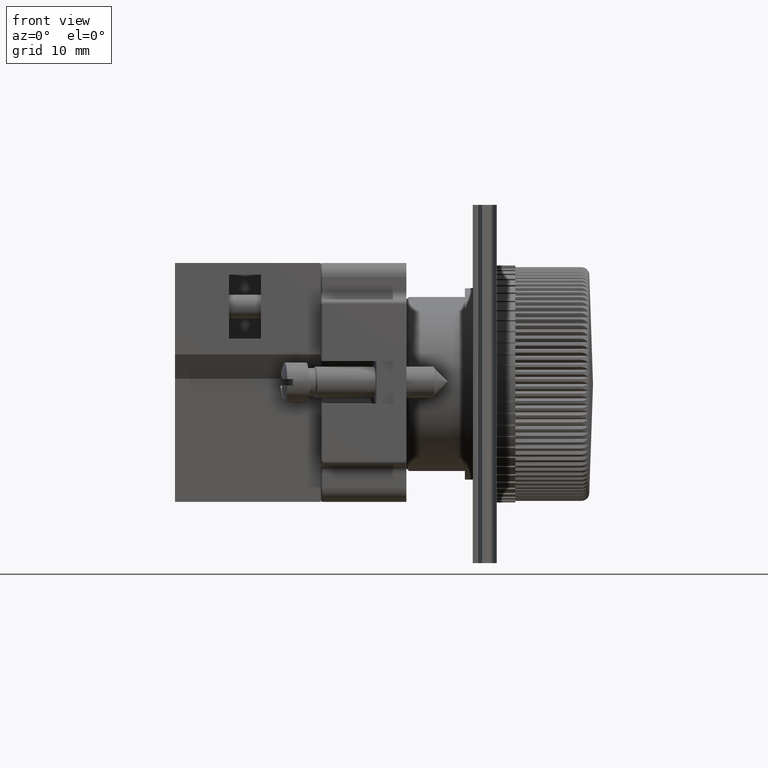
[diagram: clean part render]
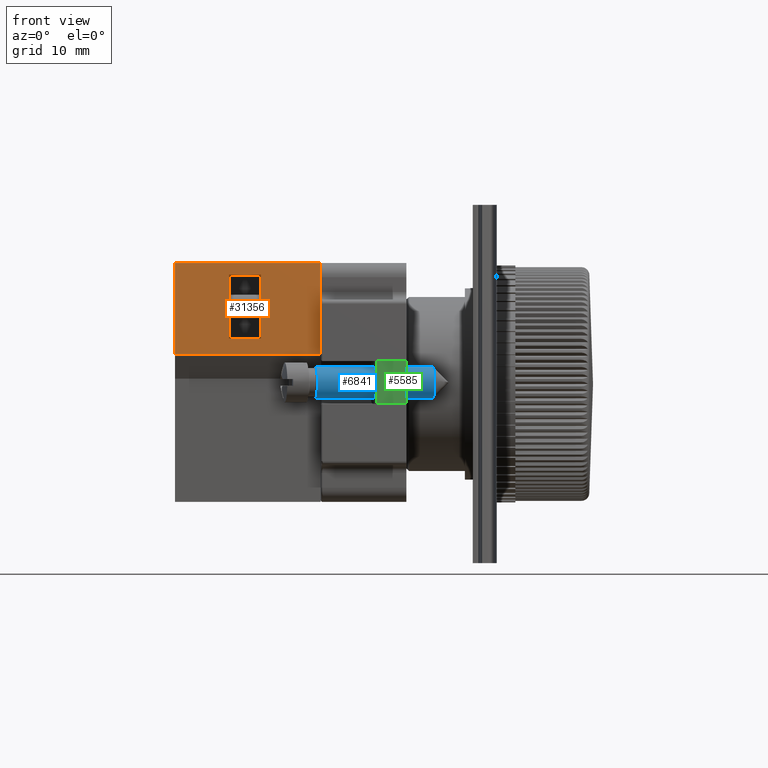
[diagram: same view with three faces highlighted in distinct colors, each labeled with its STEP entity id]
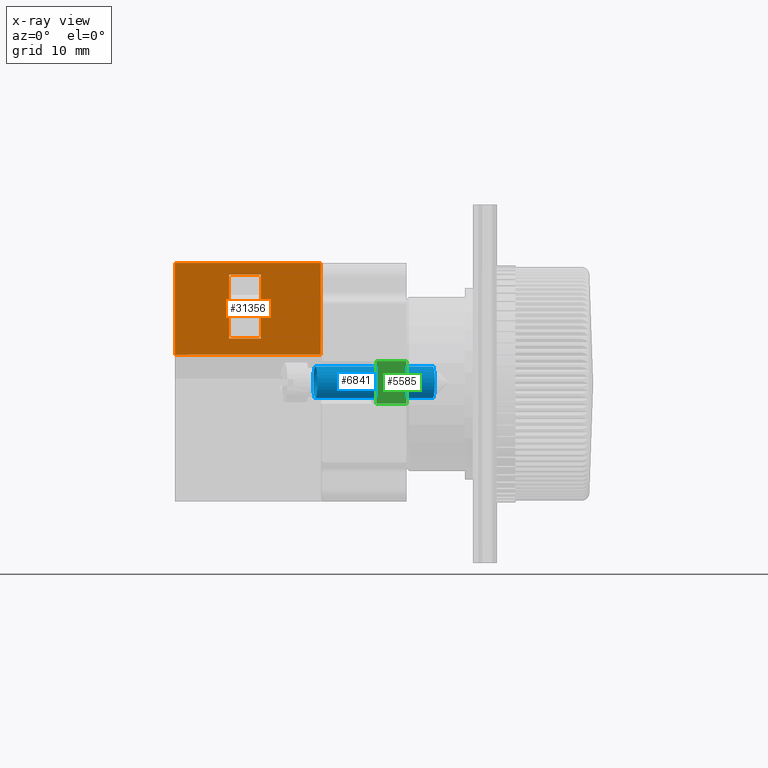
[diagram: x-ray of the same camera — body ghosted, the three highlighted faces saturated]
A machine part, front view with three faces highlighted in distinct colors.
The next image is the same camera in x-ray (body ghosted, the three faces saturated) — at least one of them is partly hidden behind the body in this view.
Their STEP definitions:

[orange] entity #31356 — the highlighted planar face has unit normal (0, -1, -0).
#30262=CARTESIAN_POINT('',(12.582876421730873,2.135901131475793,7.500000000000001));
#30263=VERTEX_POINT('',#30262);
#30270=CARTESIAN_POINT('',(12.582876421730875,10.135901131475794,7.499999999999999));
#30271=VERTEX_POINT('',#30270);
#30272=CARTESIAN_POINT('',(12.582876421730875,10.135901131475794,7.499999999999999));
#30273=DIRECTION('',(0.0,-1.0,0.0));
#30274=VECTOR('',#30273,8.0);
#30275=LINE('',#30272,#30274);
#30276=EDGE_CURVE('',#30271,#30263,#30275,.T.);
#30300=CARTESIAN_POINT('',(12.582876421730873,2.135901131475794,11.500000000000000));
#30301=VERTEX_POINT('',#30300);
#30308=CARTESIAN_POINT('',(12.582876421730873,2.135901131475793,7.500000000000001));
#30309=DIRECTION('',(0.0,0.0,1.0));
#30310=VECTOR('',#30309,3.999999999999999);
#30311=LINE('',#30308,#30310);
#30312=EDGE_CURVE('',#30263,#30301,#30311,.T.);
#30331=CARTESIAN_POINT('',(12.582876421730875,10.135901131475794,11.500000000000000));
#30332=VERTEX_POINT('',#30331);
#30339=CARTESIAN_POINT('',(12.582876421730873,2.135901131475794,11.500000000000000));
#30340=DIRECTION('',(0.0,1.0,0.0));
#30341=VECTOR('',#30340,8.0);
#30342=LINE('',#30339,#30341);
#30343=EDGE_CURVE('',#30301,#30332,#30342,.T.);
#30397=CARTESIAN_POINT('',(12.582876421730875,10.135901131475794,11.500000000000000));
#30398=DIRECTION('',(0.0,0.0,-1.0));
#30399=VECTOR('',#30398,4.000000000000001);
#30400=LINE('',#30397,#30399);
#30401=EDGE_CURVE('',#30332,#30271,#30400,.T.);
#31067=CARTESIAN_POINT('',(12.582876421730873,0.135901131475797,18.300000000000001));
#31068=VERTEX_POINT('',#31067);
#31075=CARTESIAN_POINT('',(12.582876421730873,11.635901131475801,18.300000000000001));
#31076=VERTEX_POINT('',#31075);
#31077=CARTESIAN_POINT('',(12.582876421730873,11.635901131475801,18.300000000000001));
#31078=DIRECTION('',(0.0,-1.0,0.0));
#31079=VECTOR('',#31078,11.500000000000004);
#31080=LINE('',#31077,#31079);
#31081=EDGE_CURVE('',#31076,#31068,#31080,.T.);
#31306=CARTESIAN_POINT('',(12.582876421730873,11.635901131475801,0.0));
#31307=VERTEX_POINT('',#31306);
#31308=CARTESIAN_POINT('',(12.582876421730873,11.635901131475801,0.0));
#31309=DIRECTION('',(0.0,0.0,1.0));
#31310=VECTOR('',#31309,18.300000000000001);
#31311=LINE('',#31308,#31310);
#31312=EDGE_CURVE('',#31307,#31076,#31311,.T.);
#31327=CARTESIAN_POINT('',(12.582876421730873,11.635901131475801,0.0));
#31328=DIRECTION('',(1.0,0.0,0.0));
#31329=DIRECTION('',(0.0,0.0,-1.0));
#31330=AXIS2_PLACEMENT_3D('',#31327,#31328,#31329);
#31331=PLANE('',#31330);
#31332=ORIENTED_EDGE('',*,*,#31081,.T.);
#31333=CARTESIAN_POINT('',(12.582876421730873,0.135901131475797,0.0));
#31334=VERTEX_POINT('',#31333);
#31335=CARTESIAN_POINT('',(12.582876421730873,0.135901131475797,0.0));
#31336=DIRECTION('',(0.0,0.0,1.0));
#31337=VECTOR('',#31336,18.300000000000001);
#31338=LINE('',#31335,#31337);
#31339=EDGE_CURVE('',#31334,#31068,#31338,.T.);
#31340=ORIENTED_EDGE('',*,*,#31339,.F.);
#31341=CARTESIAN_POINT('',(12.582876421730873,0.135901131475797,0.0));
#31342=DIRECTION('',(0.0,1.0,0.0));
#31343=VECTOR('',#31342,11.500000000000004);
#31344=LINE('',#31341,#31343);
#31345=EDGE_CURVE('',#31334,#31307,#31344,.T.);
#31346=ORIENTED_EDGE('',*,*,#31345,.T.);
#31347=ORIENTED_EDGE('',*,*,#31312,.T.);
#31348=EDGE_LOOP('',(#31332,#31340,#31346,#31347));
#31349=FACE_OUTER_BOUND('',#31348,.T.);
#31350=ORIENTED_EDGE('',*,*,#30276,.T.);
#31351=ORIENTED_EDGE('',*,*,#30312,.T.);
#31352=ORIENTED_EDGE('',*,*,#30343,.T.);
#31353=ORIENTED_EDGE('',*,*,#30401,.T.);
#31354=EDGE_LOOP('',(#31350,#31351,#31352,#31353));
#31355=FACE_BOUND('',#31354,.T.);
#31356=ADVANCED_FACE('',(#31349,#31355),#31331,.T.);

[blue] entity #6841 — the highlighted cylindrical surface (bore or boss wall) has radius 2 mm, axis along (0.9914, 0.1305, 0).
#6810=CARTESIAN_POINT('',(-1.999999999999998,0.0,-1.119999999999999));
#6811=VERTEX_POINT('',#6810);
#6812=CARTESIAN_POINT('',(0.0,0.0,-1.119999999999999));
#6813=DIRECTION('',(0.0,0.0,-1.0));
#6814=DIRECTION('',(-1.0,0.0,0.0));
#6815=AXIS2_PLACEMENT_3D('',#6812,#6813,#6814);
#6816=CIRCLE('',#6815,1.999999999999998);
#6817=EDGE_CURVE('',#6811,#6811,#6816,.T.);
#6822=CARTESIAN_POINT('',(0.0,0.0,-8.559999999999999));
#6823=DIRECTION('',(0.0,0.0,-1.0));
#6824=DIRECTION('',(-1.0,0.0,0.0));
#6825=AXIS2_PLACEMENT_3D('',#6822,#6823,#6824);
#6826=CYLINDRICAL_SURFACE('',#6825,1.999999999999999);
#6827=CARTESIAN_POINT('',(-2.000000000000000,0.0,-15.999999999999998));
#6828=VERTEX_POINT('',#6827);
#6829=CARTESIAN_POINT('',(0.0,0.0,-15.999999999999998));
#6830=DIRECTION('',(0.0,0.0,-1.0));
#6831=DIRECTION('',(-1.0,0.0,0.0));
#6832=AXIS2_PLACEMENT_3D('',#6829,#6830,#6831);
#6833=CIRCLE('',#6832,2.000000000000000);
#6834=EDGE_CURVE('',#6828,#6828,#6833,.T.);
#6835=ORIENTED_EDGE('',*,*,#6834,.F.);
#6836=EDGE_LOOP('',(#6835));
#6837=FACE_OUTER_BOUND('',#6836,.T.);
#6838=ORIENTED_EDGE('',*,*,#6817,.T.);
#6839=EDGE_LOOP('',(#6838));
#6840=FACE_BOUND('',#6839,.T.);
#6841=ADVANCED_FACE('',(#6837,#6840),#6826,.T.);

[green] entity #5585 — the highlighted planar face has unit normal (0, -1, -0).
#4220=CARTESIAN_POINT('',(-18.082780308276106,7.467864828157554,0.0));
#4221=VERTEX_POINT('',#4220);
#4228=CARTESIAN_POINT('',(-18.082780308276106,12.817864828157555,0.0));
#4229=VERTEX_POINT('',#4228);
#4230=CARTESIAN_POINT('',(-18.082780308276106,12.817864828157555,0.0));
#4231=DIRECTION('',(0.0,-1.0,0.0));
#4232=VECTOR('',#4231,5.350000000000001);
#4233=LINE('',#4230,#4232);
#4234=EDGE_CURVE('',#4229,#4221,#4233,.T.);
#5535=CARTESIAN_POINT('',(-18.082780308276106,7.467864828157554,3.749999999999996));
#5536=VERTEX_POINT('',#5535);
#5544=CARTESIAN_POINT('',(-18.082780308276106,12.817864828157555,3.749999999999996));
#5545=VERTEX_POINT('',#5544);
#5552=CARTESIAN_POINT('',(-18.082780308276106,7.467864828157554,3.749999999999996));
#5553=DIRECTION('',(0.0,1.0,0.0));
#5554=VECTOR('',#5553,5.350000000000001);
#5555=LINE('',#5552,#5554);
#5556=EDGE_CURVE('',#5536,#5545,#5555,.T.);
#5564=CARTESIAN_POINT('',(-18.082780308276106,7.467864828157554,0.0));
#5565=DIRECTION('',(-1.0,0.0,0.0));
#5566=DIRECTION('',(0.0,0.0,1.0));
#5567=AXIS2_PLACEMENT_3D('',#5564,#5565,#5566);
#5568=PLANE('',#5567);
#5569=ORIENTED_EDGE('',*,*,#5556,.T.);
#5570=CARTESIAN_POINT('',(-18.082780308276106,12.817864828157555,0.0));
#5571=DIRECTION('',(0.0,0.0,1.0));
#5572=VECTOR('',#5571,3.749999999999996);
#5573=LINE('',#5570,#5572);
#5574=EDGE_CURVE('',#4229,#5545,#5573,.T.);
#5575=ORIENTED_EDGE('',*,*,#5574,.F.);
#5576=ORIENTED_EDGE('',*,*,#4234,.T.);
#5577=CARTESIAN_POINT('',(-18.082780308276106,7.467864828157554,0.0));
#5578=DIRECTION('',(0.0,0.0,1.0));
#5579=VECTOR('',#5578,3.749999999999996);
#5580=LINE('',#5577,#5579);
#5581=EDGE_CURVE('',#4221,#5536,#5580,.T.);
#5582=ORIENTED_EDGE('',*,*,#5581,.T.);
#5583=EDGE_LOOP('',(#5569,#5575,#5576,#5582));
#5584=FACE_OUTER_BOUND('',#5583,.T.);
#5585=ADVANCED_FACE('',(#5584),#5568,.T.);